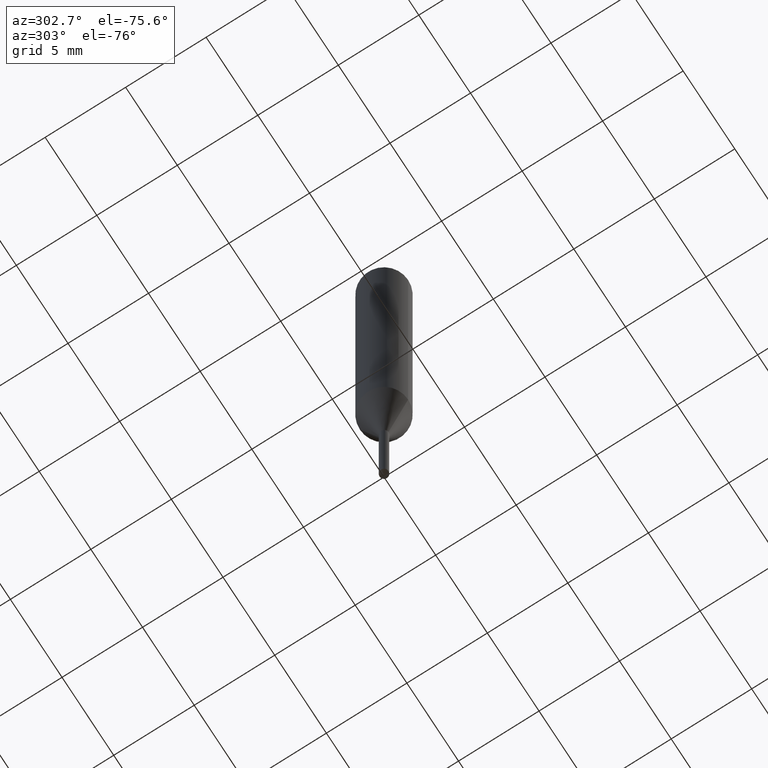
[diagram: clean part render]
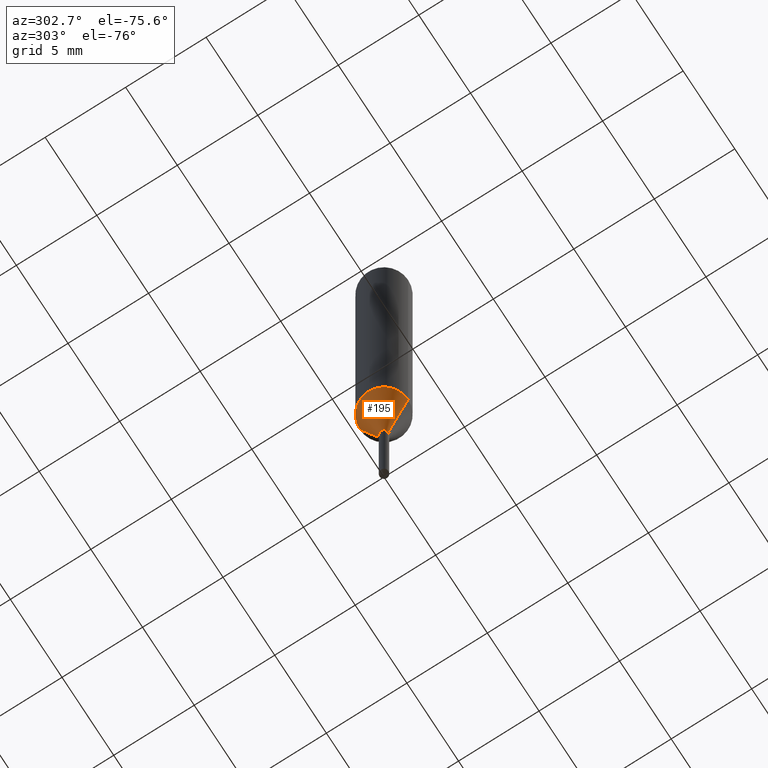
[diagram: same view with one face highlighted and labeled with its STEP entity id]
A machine part, auxiliary view. The second image highlights one B-rep face of the part: STEP entity #195.
In plain terms, the highlighted conical surface has half-angle 16.003 deg.
Its self-contained STEP definition (entity closure, byte-faithful):
#93=EDGE_CURVE('',#167,#203,#228,.T.);
#129=VERTEX_POINT('',#267);
#135=EDGE_CURVE('',#129,#145,#273,.T.);
#141=EDGE_CURVE('',#145,#203,#279,.T.);
#145=VERTEX_POINT('',#284);
#167=VERTEX_POINT('',#309);
#183=EDGE_CURVE('',#167,#129,#329,.T.);
#195=ADVANCED_FACE('',(#343),#344,.T.);
#203=VERTEX_POINT('',#353);
#228=CIRCLE('',#373,0.275);
#267=CARTESIAN_POINT('',(1.83690953073357E-016,-1.5,-25.428));
#273=CIRCLE('',#433,1.5);
#279=LINE('',#441,#442);
#284=CARTESIAN_POINT('',(0.0,1.5,-25.428));
#309=CARTESIAN_POINT('',(3.36766747301154E-017,-0.275,-29.6991339745962));
#329=LINE('',#504,#505);
#343=FACE_OUTER_BOUND('',#518,.T.);
#344=CONICAL_SURFACE('',#519,0.8875,0.279311533079316);
#353=CARTESIAN_POINT('',(0.0,0.275,-29.6991339745962));
#373=AXIS2_PLACEMENT_3D('',#536,#537,#538);
#433=AXIS2_PLACEMENT_3D('',#582,#583,#584);
#441=CARTESIAN_POINT('',(-1.08683813901736E-016,0.8875,-27.5635669872981));
#442=VECTOR('',#588,1.0);
#504=CARTESIAN_POINT('',(1.08683813901736E-016,-0.8875,-27.5635669872981));
#505=VECTOR('',#662,1.0);
#518=EDGE_LOOP('',(#680,#681,#682,#683));
#519=AXIS2_PLACEMENT_3D('',#684,#685,#686);
#536=CARTESIAN_POINT('',(0.0,0.0,-29.6991339745962));
#537=DIRECTION('',(0.0,0.0,-1.0));
#538=DIRECTION('',(0.0,1.0,0.0));
#582=CARTESIAN_POINT('',(0.0,0.0,-25.428));
#583=DIRECTION('',(0.0,0.0,-1.0));
#584=DIRECTION('',(0.0,1.0,0.0));
#588=DIRECTION('',(3.37616536237503E-017,-0.275693928243714,-0.961245472254382));
#662=DIRECTION('',(3.37616536237503E-017,-0.275693928243714,0.961245472254382));
#680=ORIENTED_EDGE('',*,*,#141,.T.);
#681=ORIENTED_EDGE('',*,*,#93,.F.);
#682=ORIENTED_EDGE('',*,*,#183,.T.);
#683=ORIENTED_EDGE('',*,*,#135,.T.);
#684=CARTESIAN_POINT('',(0.0,0.0,-27.5635669872981));
#685=DIRECTION('',(-0.0,-0.0,1.0));
#686=DIRECTION('',(0.0,1.0,0.0));